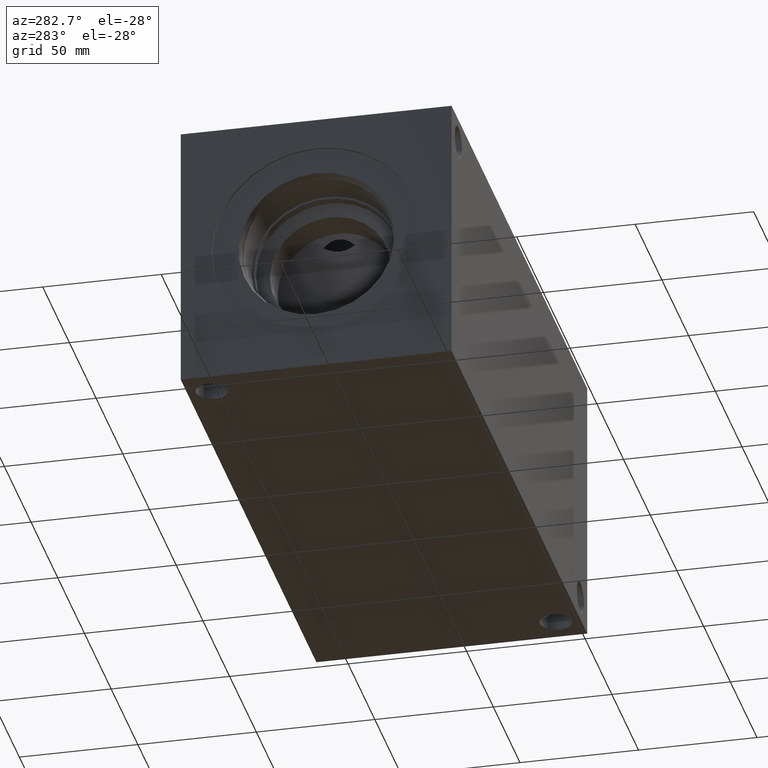
[diagram: clean part render]
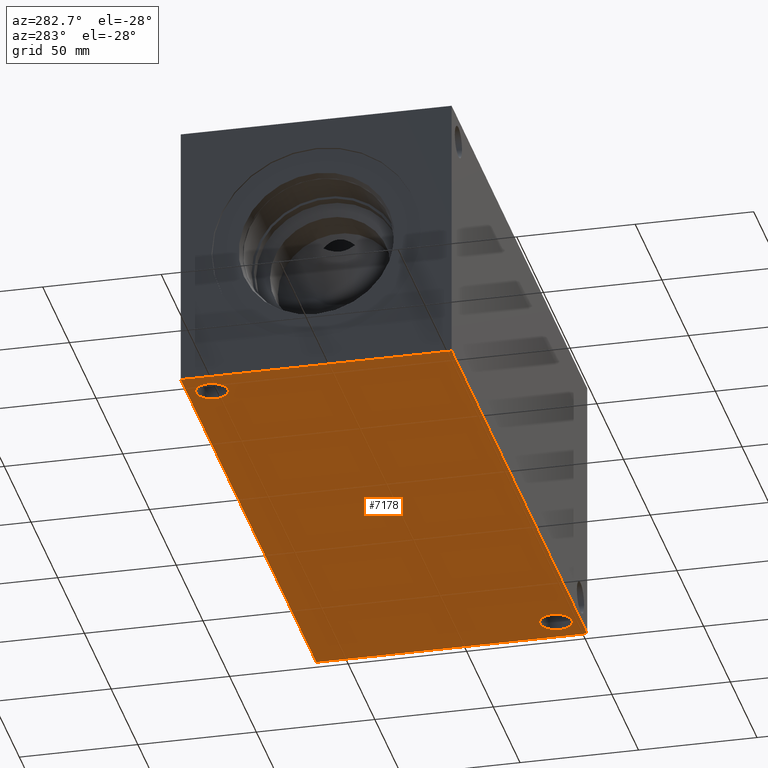
[diagram: same view with one face highlighted and labeled with its STEP entity id]
A machine part, auxiliary view. The second image highlights one B-rep face of the part: STEP entity #7178.
In plain terms, the highlighted planar face has unit normal (0, 0, 1).
Its self-contained STEP definition (entity closure, byte-faithful):
#80=CIRCLE('',#7432,6.7437);
#81=CIRCLE('',#7434,6.7437);
#202=FACE_BOUND('',#1263,.T.);
#203=FACE_BOUND('',#1264,.T.);
#853=FACE_OUTER_BOUND('',#1262,.T.);
#1262=EDGE_LOOP('',(#6290,#6291,#6292,#6293));
#1263=EDGE_LOOP('',(#6294));
#1264=EDGE_LOOP('',(#6295));
#1956=LINE('',#12266,#2655);
#1959=LINE('',#12271,#2658);
#1961=LINE('',#12275,#2660);
#1963=LINE('',#12278,#2662);
#2655=VECTOR('',#8971,10.);
#2658=VECTOR('',#8976,10.);
#2660=VECTOR('',#8980,10.);
#2662=VECTOR('',#8984,10.);
#3239=VERTEX_POINT('',#11962);
#3240=VERTEX_POINT('',#11966);
#3322=VERTEX_POINT('',#12264);
#3323=VERTEX_POINT('',#12265);
#3324=VERTEX_POINT('',#12270);
#3325=VERTEX_POINT('',#12274);
#4190=EDGE_CURVE('',#3239,#3239,#80,.T.);
#4192=EDGE_CURVE('',#3240,#3240,#81,.T.);
#4308=EDGE_CURVE('',#3322,#3323,#1956,.T.);
#4311=EDGE_CURVE('',#3324,#3322,#1959,.T.);
#4313=EDGE_CURVE('',#3325,#3324,#1961,.T.);
#4315=EDGE_CURVE('',#3323,#3325,#1963,.T.);
#6290=ORIENTED_EDGE('',*,*,#4315,.F.);
#6291=ORIENTED_EDGE('',*,*,#4308,.F.);
#6292=ORIENTED_EDGE('',*,*,#4311,.F.);
#6293=ORIENTED_EDGE('',*,*,#4313,.F.);
#6294=ORIENTED_EDGE('',*,*,#4190,.T.);
#6295=ORIENTED_EDGE('',*,*,#4192,.T.);
#6519=PLANE('',#7557);
#7178=ADVANCED_FACE('',(#853,#202,#203),#6519,.F.);
#7432=AXIS2_PLACEMENT_3D('',#11964,#8692,#8693);
#7434=AXIS2_PLACEMENT_3D('',#11968,#8697,#8698);
#7557=AXIS2_PLACEMENT_3D('',#12280,#8987,#8988);
#8692=DIRECTION('center_axis',(0.,0.,1.));
#8693=DIRECTION('ref_axis',(1.,0.,0.));
#8697=DIRECTION('center_axis',(0.,0.,1.));
#8698=DIRECTION('ref_axis',(1.,0.,0.));
#8971=DIRECTION('',(0.,-1.,0.));
#8976=DIRECTION('',(-1.,0.,0.));
#8980=DIRECTION('',(0.,1.,0.));
#8984=DIRECTION('',(1.,0.,0.));
#8987=DIRECTION('center_axis',(0.,0.,1.));
#8988=DIRECTION('ref_axis',(1.,0.,0.));
#11962=CARTESIAN_POINT('',(5.9563,103.9876,0.));
#11964=CARTESIAN_POINT('Origin',(12.7,103.9876,0.));
#11966=CARTESIAN_POINT('',(234.5563,10.3124,0.));
#11968=CARTESIAN_POINT('Origin',(241.3,10.3124,0.));
#12264=CARTESIAN_POINT('',(0.,114.3,0.));
#12265=CARTESIAN_POINT('',(0.,0.,0.));
#12266=CARTESIAN_POINT('',(0.,114.3,0.));
#12270=CARTESIAN_POINT('',(254.,114.3,0.));
#12271=CARTESIAN_POINT('',(254.,114.3,0.));
#12274=CARTESIAN_POINT('',(254.,0.,0.));
#12275=CARTESIAN_POINT('',(254.,0.,0.));
#12278=CARTESIAN_POINT('',(0.,0.,0.));
#12280=CARTESIAN_POINT('Origin',(127.,57.15,0.));